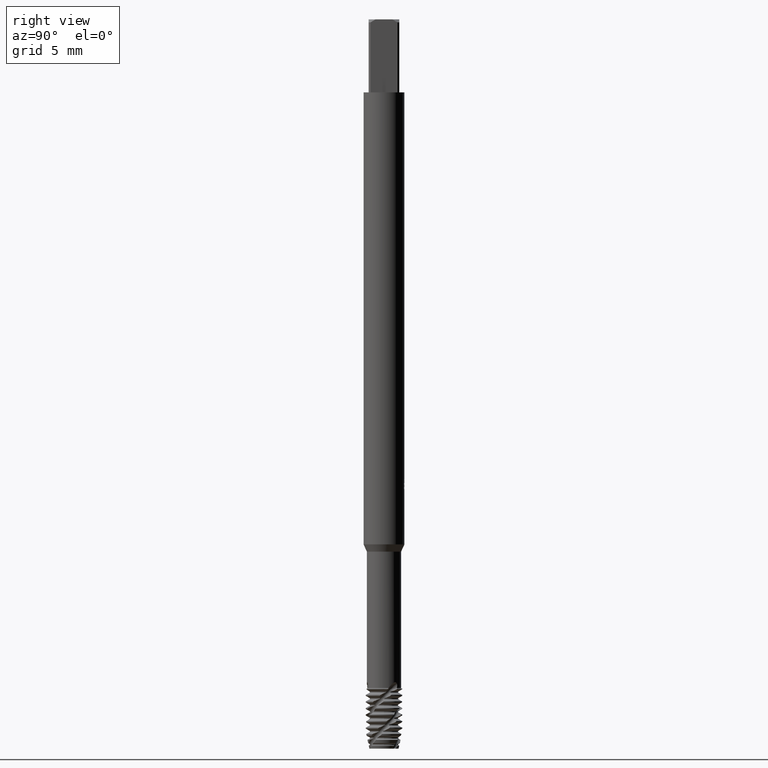
[diagram: clean part render]
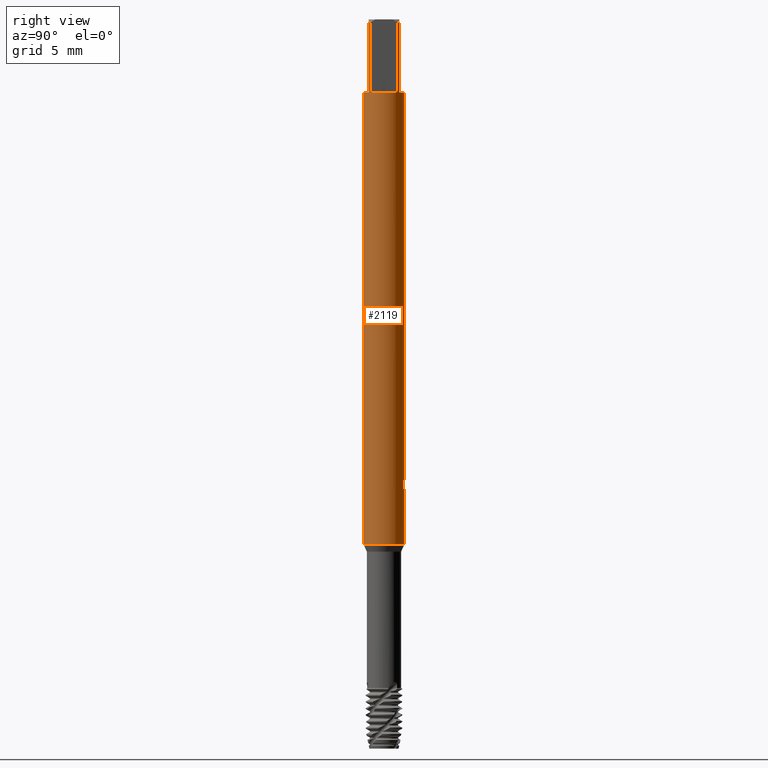
[diagram: same view with one face highlighted and labeled with its STEP entity id]
A machine part, right view. The second image highlights one B-rep face of the part: STEP entity #2119.
In plain terms, the highlighted cylindrical surface (edge-blend (fillet) strip) has radius 1.4 mm, axis along (-0, -0, 1).
Its self-contained STEP definition (entity closure, byte-faithful):
#1461=EDGE_CURVE('',#1479,#1863,#4313,.T.);
#1479=VERTEX_POINT('',#4333);
#1563=EDGE_CURVE('',#3203,#3275,#4427,.T.);
#1607=VERTEX_POINT('',#4474);
#1613=EDGE_CURVE('',#2767,#3883,#4480,.T.);
#1623=VERTEX_POINT('',#4490);
#1729=VERTEX_POINT('',#4605);
#1733=EDGE_CURVE('',#1607,#2625,#4609,.T.);
#1741=VERTEX_POINT('',#4618);
#1863=VERTEX_POINT('',#4753);
#1931=EDGE_CURVE('',#1863,#3799,#4825,.T.);
#1987=EDGE_CURVE('',#3843,#2821,#4887,.T.);
#2089=VERTEX_POINT('',#4996);
#2119=ADVANCED_FACE('',(#5029),#5030,.T.);
#2265=VERTEX_POINT('',#5189);
#2269=EDGE_CURVE('',#3883,#2817,#5193,.T.);
#2331=EDGE_CURVE('',#3843,#3003,#5263,.T.);
#2469=EDGE_CURVE('',#1623,#3557,#5418,.T.);
#2625=VERTEX_POINT('',#5584);
#2685=EDGE_CURVE('',#2089,#2821,#5646,.T.);
#2725=EDGE_CURVE('',#3275,#2767,#5689,.T.);
#2767=VERTEX_POINT('',#5735);
#2817=VERTEX_POINT('',#5787);
#2821=VERTEX_POINT('',#5791);
#3003=VERTEX_POINT('',#5988);
#3011=EDGE_CURVE('',#3003,#3203,#5996,.T.);
#3015=EDGE_CURVE('',#2265,#1479,#6000,.T.);
#3077=EDGE_CURVE('',#2817,#1729,#6069,.T.);
#3129=EDGE_CURVE('',#4009,#3799,#6124,.T.);
#3181=EDGE_CURVE('',#3557,#1741,#6183,.T.);
#3203=VERTEX_POINT('',#6206);
#3275=VERTEX_POINT('',#6288);
#3557=VERTEX_POINT('',#6594);
#3689=EDGE_CURVE('',#1729,#4009,#6733,.T.);
#3799=VERTEX_POINT('',#6850);
#3805=EDGE_CURVE('',#2625,#1623,#6856,.T.);
#3843=VERTEX_POINT('',#6897);
#3883=VERTEX_POINT('',#6940);
#3893=EDGE_CURVE('',#1741,#2089,#6953,.T.);
#3969=EDGE_CURVE('',#2265,#1607,#7035,.T.);
#4009=VERTEX_POINT('',#7077);
#4313=CIRCLE('',#7416,1.4);
#4333=CARTESIAN_POINT('',(0.0,1.4,-36.0));
#4427=CIRCLE('',#8191,1.4);
#4474=CARTESIAN_POINT('',(0.0812288755700328,1.3976415383687,-32.3399532117264));
#4480=CIRCLE('',#8334,1.4);
#4490=CARTESIAN_POINT('',(0.244597018892509,1.37846737297221,-32.2724458501629));
#4605=CARTESIAN_POINT('',(0.926012958872607,-1.05,-0.200000000000003));
#4609=ELLIPSE('',#8748,4.26719240271768,1.4);
#4618=CARTESIAN_POINT('',(0.374418818241044,1.34900353911581,-31.644213562215));
#4753=CARTESIAN_POINT('',(1.71444889535133E-016,-1.4,-36.0));
#4825=LINE('',#9330,#9331);
#4887=LINE('',#9628,#9629);
#4996=CARTESIAN_POINT('',(0.223840883387623,1.38198960159773,-31.5000000775244));
#5029=FACE_OUTER_BOUND('',#10171,.T.);
#5030=CYLINDRICAL_SURFACE('',#10172,1.4);
#5189=CARTESIAN_POINT('',(-4.47157889729947E-015,1.40000000000001,-32.3486871008289));
#5193=LINE('',#10612,#10613);
#5263=CIRCLE('',#10740,1.4);
#5418=B_SPLINE_CURVE_WITH_KNOTS('',3,(#11321,#11322,#11323,#11324,#11325,#11326),.UNSPECIFIED.,.F.,.F.,(4,2,4),(2.25114102749539,2.4241318604872,2.59730157218882),.UNSPECIFIED.);
#5584=CARTESIAN_POINT('',(0.244597018892509,1.37846737297221,-31.8695700846906));
#5646=B_SPLINE_CURVE_WITH_KNOTS('',3,(#12201,#12202,#12203,#12204,#12205,#12206,#12207,#12208,#12209,#12210,#12211,#12212,#12213,#12214,#12215,#12216,#12217,#12218,#12219,#12220,#12221,#12222,#12223,#12224,#12225,#12226,#12227),.UNSPECIFIED.,.F.,.F.,(4,2,3,2,2,2,2,2,2,2,2,2,4),(-0.151896109344489,-0.0759480546722444,0.0,0.0759480546722442,0.151896109344488,0.228003668182346,0.304111227020204,0.379951168701424,0.455791110382644,0.531710014355649,0.607628918328655,0.683547822301662,0.759466726274669),.UNSPECIFIED.);
#5689=LINE('',#12287,#12288);
#5735=CARTESIAN_POINT('',(1.05,0.926012958872607,-5.0));
#5787=CARTESIAN_POINT('',(1.05,-0.926012958872607,-0.200000000000003));
#5791=CARTESIAN_POINT('',(9.0648518523229E-015,1.40000000000001,-31.7865152672968));
#5988=CARTESIAN_POINT('',(0.926012958872607,1.05,-5.0));
#5996=LINE('',#13018,#13019);
#6000=LINE('',#13038,#13039);
#6069=CIRCLE('',#13312,1.4);
#6124=CIRCLE('',#13477,1.4);
#6183=LINE('',#13776,#13777);
#6206=CARTESIAN_POINT('',(0.926012958872607,1.05,-0.200000000000003));
#6288=CARTESIAN_POINT('',(1.05,0.926012958872607,-0.200000000000003));
#6594=CARTESIAN_POINT('',(0.374418818241044,1.34900353911581,-32.1412463960912));
#6733=LINE('',#15731,#15732);
#6850=CARTESIAN_POINT('',(1.71444889535133E-016,-1.4,-5.0));
#6856=LINE('',#16154,#16155);
#6897=CARTESIAN_POINT('',(-1.71444889535133E-016,1.4,-5.0));
#6940=CARTESIAN_POINT('',(1.05,-0.926012958872607,-5.0));
#6953=B_SPLINE_CURVE_WITH_KNOTS('',3,(#16381,#16382,#16383,#16384,#16385,#16386),.UNSPECIFIED.,.F.,.F.,(4,2,4),(0.173169717719266,0.346339435438532,0.519330274269827),.UNSPECIFIED.);
#7035=B_SPLINE_CURVE_WITH_KNOTS('',3,(#16713,#16714,#16715,#16716,#16717,#16718,#16719,#16720,#16721,#16722),.UNSPECIFIED.,.F.,.F.,(4,2,2,2,4),(1.55844472953586,1.73165366963831,1.90490204009231,2.0781504105463,2.25114125913259),.UNSPECIFIED.);
#7077=CARTESIAN_POINT('',(0.926012958872607,-1.05,-5.0));
#7416=AXIS2_PLACEMENT_3D('',#17992,#17993,#17994);
#8191=AXIS2_PLACEMENT_3D('',#18265,#18266,#18267);
#8334=AXIS2_PLACEMENT_3D('',#18304,#18305,#18306);
#8748=AXIS2_PLACEMENT_3D('',#18421,#18422,#18423);
#9330=CARTESIAN_POINT('',(1.71444889535133E-016,-1.4,-18.1));
#9331=VECTOR('',#18646,1.0);
#9628=CARTESIAN_POINT('',(-1.71444889535133E-016,1.4,-18.1));
#9629=VECTOR('',#18702,1.0);
#10171=EDGE_LOOP('',(#18834,#18835,#18836,#18837,#18838,#18839,#18840,#18841,#18842,#18843,#18844,#18845,#18846,#18847,#18848,#18849,#18850,#18851,#18852,#18853));
#10172=AXIS2_PLACEMENT_3D('',#18854,#18855,#18856);
#10612=CARTESIAN_POINT('',(1.05,-0.926012958872607,-2.6));
#10613=VECTOR('',#19025,1.0);
#10740=AXIS2_PLACEMENT_3D('',#19118,#19119,#19120);
#11321=CARTESIAN_POINT('',(0.167086233471015,1.38999359372066,-32.3138299007267));
#11322=CARTESIAN_POINT('',(0.223200399476053,1.38324830751393,-32.2905063687607));
#11323=CARTESIAN_POINT('',(0.274208594270138,1.37350494027739,-32.2554835892732));
#11324=CARTESIAN_POINT('',(0.354751034670685,1.3549396325492,-32.1749704264487));
#11325=CARTESIAN_POINT('',(0.389786768556294,1.3448653783258,-32.123957385146));
#11326=CARTESIAN_POINT('',(0.413124974246871,1.33765756292615,-32.0678380352193));
#12201=CARTESIAN_POINT('',(0.186234375625526,1.38755783927567,-31.4478069768094));
#12202=CARTESIAN_POINT('',(0.204045855147288,1.38516722918807,-31.4656377636506));
#12203=CARTESIAN_POINT('',(0.219509966508969,1.38272329461867,-31.4882242090074));
#12204=CARTESIAN_POINT('',(0.240044541369611,1.37930669332289,-31.5377751968526));
#12205=CARTESIAN_POINT('',(0.2451122747328,1.37837584597791,-31.5647437453002));
#12206=CARTESIAN_POINT('',(0.2451122747328,1.37837584597791,-31.5900597635243));
#12207=CARTESIAN_POINT('',(0.2451122747328,1.37837584597791,-31.6153757817484));
#12208=CARTESIAN_POINT('',(0.240044541369612,1.37930669332289,-31.642344330196));
#12209=CARTESIAN_POINT('',(0.219509966508969,1.38272329461867,-31.6918953180412));
#12210=CARTESIAN_POINT('',(0.204045855147288,1.38516722918807,-31.714481763398));
#12211=CARTESIAN_POINT('',(0.168385488889172,1.38995347006155,-31.7501807848438));
#12212=CARTESIAN_POINT('',(0.145779535192356,1.39261191870671,-31.7656794796524));
#12213=CARTESIAN_POINT('',(0.096181070294642,1.39691403840364,-31.7862627632496));
#12214=CARTESIAN_POINT('',(0.0691841415516893,1.39851962809616,-31.7913446487769));
#12215=CARTESIAN_POINT('',(0.018559799405131,1.40010521435468,-31.7913446487769));
#12216=CARTESIAN_POINT('',(-0.00839589391406644,1.4001943792419,-31.7862946899823));
#12217=CARTESIAN_POINT('',(-0.0579719081846378,1.39901895933102,-31.7657649729061));
#12218=CARTESIAN_POINT('',(-0.0805935619871287,1.39779298536454,-31.7502862407914));
#12219=CARTESIAN_POINT('',(-0.116331445893834,1.39527352684361,-31.714573107387));
#12220=CARTESIAN_POINT('',(-0.131830410449506,1.39381762035858,-31.6919457716586));
#12221=CARTESIAN_POINT('',(-0.152394035573754,1.39171939506282,-31.642343344318));
#12222=CARTESIAN_POINT('',(-0.15745749577243,1.39111722619809,-31.6153660648486));
#12223=CARTESIAN_POINT('',(-0.15745749577243,1.39111722619809,-31.5647534622));
#12224=CARTESIAN_POINT('',(-0.152394035573756,1.39171939506282,-31.5377761827306));
#12225=CARTESIAN_POINT('',(-0.131830410449509,1.39381762035858,-31.48817375539));
#12226=CARTESIAN_POINT('',(-0.116331445893835,1.39527352684361,-31.4655464196616));
#12227=CARTESIAN_POINT('',(-0.0984532064751357,1.39653391155917,-31.4476805619331));
#12287=CARTESIAN_POINT('',(1.05,0.926012958872607,-2.6));
#12288=VECTOR('',#19580,1.0);
#13018=CARTESIAN_POINT('',(0.926012958872607,1.05,-2.6));
#13019=VECTOR('',#19852,1.0);
#13038=CARTESIAN_POINT('',(-1.71444889535133E-016,1.4,-18.1));
#13039=VECTOR('',#19853,1.0);
#13312=AXIS2_PLACEMENT_3D('',#19924,#19925,#19926);
#13477=AXIS2_PLACEMENT_3D('',#19973,#19974,#19975);
#13776=CARTESIAN_POINT('',(0.374418818241044,1.34900353911581,-31.8927299791531));
#13777=VECTOR('',#20039,1.0);
#15731=CARTESIAN_POINT('',(0.926012958872607,-1.05,-2.6));
#15732=VECTOR('',#20563,1.0);
#16154=CARTESIAN_POINT('',(0.244597018892509,1.37846737297221,-32.0710079674267));
#16155=VECTOR('',#20669,1.0);
#16381=CARTESIAN_POINT('',(0.41312497648661,1.33765756223442,-31.717621926988));
#16382=CARTESIAN_POINT('',(0.389786769980392,1.34486537792879,-31.6615025751213));
#16383=CARTESIAN_POINT('',(0.354751034872368,1.35493963254047,-31.6104895320576));
#16384=CARTESIAN_POINT('',(0.274208591682508,1.37350494083614,-31.52997636649));
#16385=CARTESIAN_POINT('',(0.22320039514407,1.38324830829047,-31.4949535858187));
#16386=CARTESIAN_POINT('',(0.167086227224723,1.3899935944715,-31.4716300530671));
#16713=CARTESIAN_POINT('',(-0.429016529382615,1.33264579596999,-32.0678173500457));
#16714=CARTESIAN_POINT('',(-0.405692155785757,1.34015456887875,-32.123911251529));
#16715=CARTESIAN_POINT('',(-0.370690490742647,1.35066740394375,-32.174884162743));
#16716=CARTESIAN_POINT('',(-0.290223032522476,1.37021357743969,-32.2553819787667));
#16717=CARTESIAN_POINT('',(-0.23923067900931,1.38056999535266,-32.2904238437486));
#16718=CARTESIAN_POINT('',(-0.126980813581745,1.39537833678434,-32.3371225771094));
#16719=CARTESIAN_POINT('',(-0.065689935139525,1.39964989628983,-32.3487562533824));
#16720=CARTESIAN_POINT('',(0.0497212810642483,1.40030456931414,-32.3487562533824));
#16721=CARTESIAN_POINT('',(0.110972139307001,1.39673887442665,-32.3371535563571));
#16722=CARTESIAN_POINT('',(0.167086310021945,1.38999358451874,-32.3138300223375));
#17992=CARTESIAN_POINT('',(0.0,0.0,-36.0));
#17993=DIRECTION('',(0.0,0.0,-1.0));
#17994=DIRECTION('',(0.0,1.0,0.0));
#18265=CARTESIAN_POINT('',(0.0,0.0,-0.200000000000003));
#18266=DIRECTION('',(0.0,0.0,-1.0));
#18267=DIRECTION('',(0.0,1.0,0.0));
#18304=CARTESIAN_POINT('',(0.0,0.0,-5.0));
#18305=DIRECTION('',(0.0,0.0,-1.0));
#18306=DIRECTION('',(0.0,1.0,0.0));
#18421=CARTESIAN_POINT('',(0.0,0.0,-32.5738341368515));
#18422=DIRECTION('',(0.944648353914092,0.0,-0.328084573619969));
#18423=DIRECTION('',(0.328084573619969,-0.0,0.944648353914092));
#18646=DIRECTION('',(-0.0,-0.0,1.0));
#18702=DIRECTION('',(0.0,0.0,-1.0));
#18834=ORIENTED_EDGE('',*,*,#1987,.F.);
#18835=ORIENTED_EDGE('',*,*,#2331,.T.);
#18836=ORIENTED_EDGE('',*,*,#3011,.T.);
#18837=ORIENTED_EDGE('',*,*,#1563,.T.);
#18838=ORIENTED_EDGE('',*,*,#2725,.T.);
#18839=ORIENTED_EDGE('',*,*,#1613,.T.);
#18840=ORIENTED_EDGE('',*,*,#2269,.T.);
#18841=ORIENTED_EDGE('',*,*,#3077,.T.);
#18842=ORIENTED_EDGE('',*,*,#3689,.T.);
#18843=ORIENTED_EDGE('',*,*,#3129,.T.);
#18844=ORIENTED_EDGE('',*,*,#1931,.F.);
#18845=ORIENTED_EDGE('',*,*,#1461,.F.);
#18846=ORIENTED_EDGE('',*,*,#3015,.F.);
#18847=ORIENTED_EDGE('',*,*,#3969,.T.);
#18848=ORIENTED_EDGE('',*,*,#1733,.T.);
#18849=ORIENTED_EDGE('',*,*,#3805,.T.);
#18850=ORIENTED_EDGE('',*,*,#2469,.T.);
#18851=ORIENTED_EDGE('',*,*,#3181,.T.);
#18852=ORIENTED_EDGE('',*,*,#3893,.T.);
#18853=ORIENTED_EDGE('',*,*,#2685,.T.);
#18854=CARTESIAN_POINT('',(0.0,0.0,-18.1));
#18855=DIRECTION('',(-0.0,-0.0,1.0));
#18856=DIRECTION('',(0.0,1.0,0.0));
#19025=DIRECTION('',(-0.0,-0.0,1.0));
#19118=CARTESIAN_POINT('',(0.0,0.0,-5.0));
#19119=DIRECTION('',(0.0,0.0,-1.0));
#19120=DIRECTION('',(0.0,1.0,0.0));
#19580=DIRECTION('',(0.0,0.0,-1.0));
#19852=DIRECTION('',(-0.0,-0.0,1.0));
#19853=DIRECTION('',(0.0,0.0,-1.0));
#19924=CARTESIAN_POINT('',(0.0,0.0,-0.200000000000003));
#19925=DIRECTION('',(0.0,0.0,-1.0));
#19926=DIRECTION('',(0.0,1.0,0.0));
#19973=CARTESIAN_POINT('',(0.0,0.0,-5.0));
#19974=DIRECTION('',(0.0,0.0,-1.0));
#19975=DIRECTION('',(0.0,1.0,0.0));
#20039=DIRECTION('',(-0.0,-0.0,1.0));
#20563=DIRECTION('',(0.0,0.0,-1.0));
#20669=DIRECTION('',(0.0,0.0,-1.0));